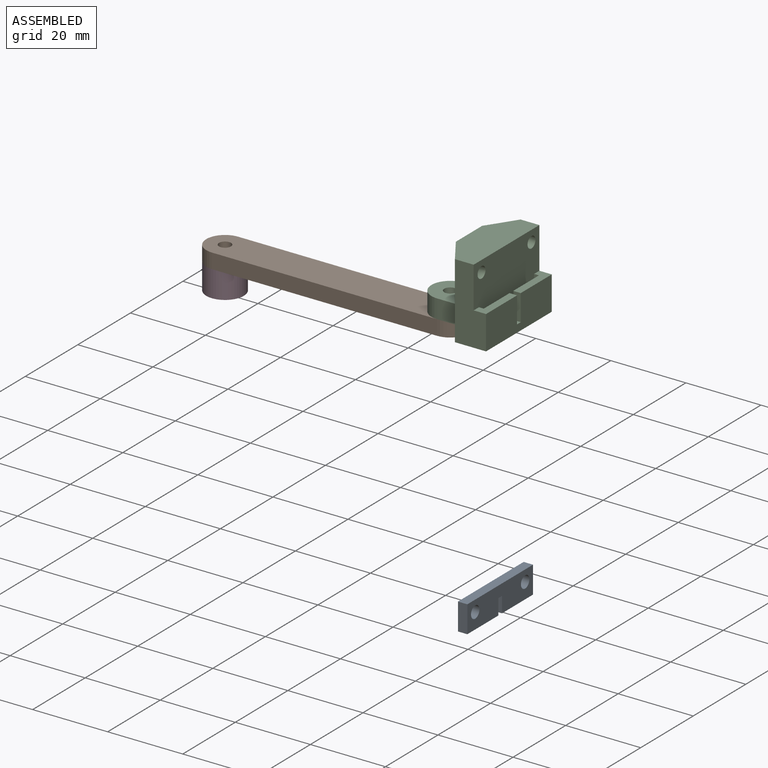
[diagram: assembled view]
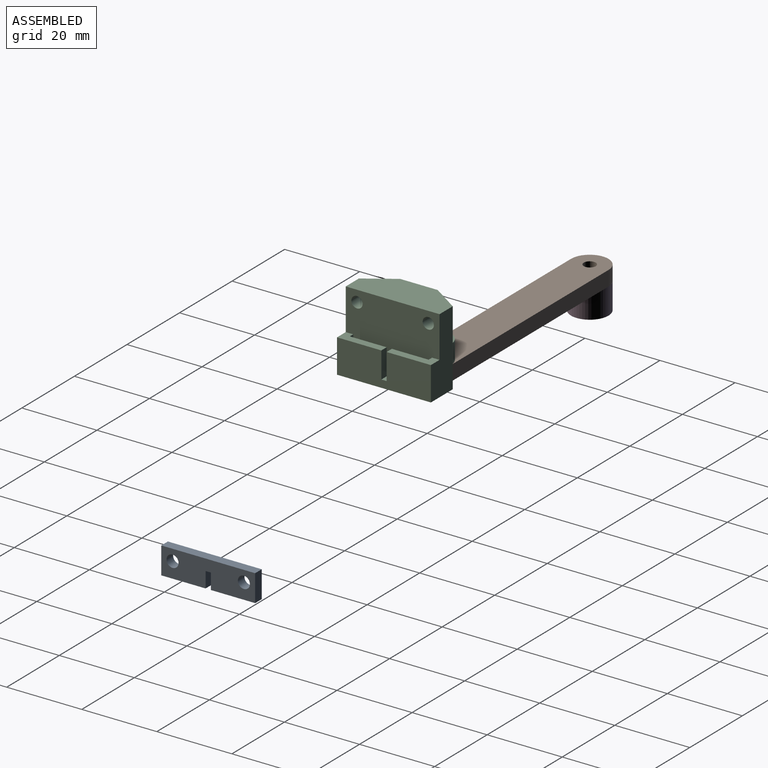
[diagram: assembled view, second angle]
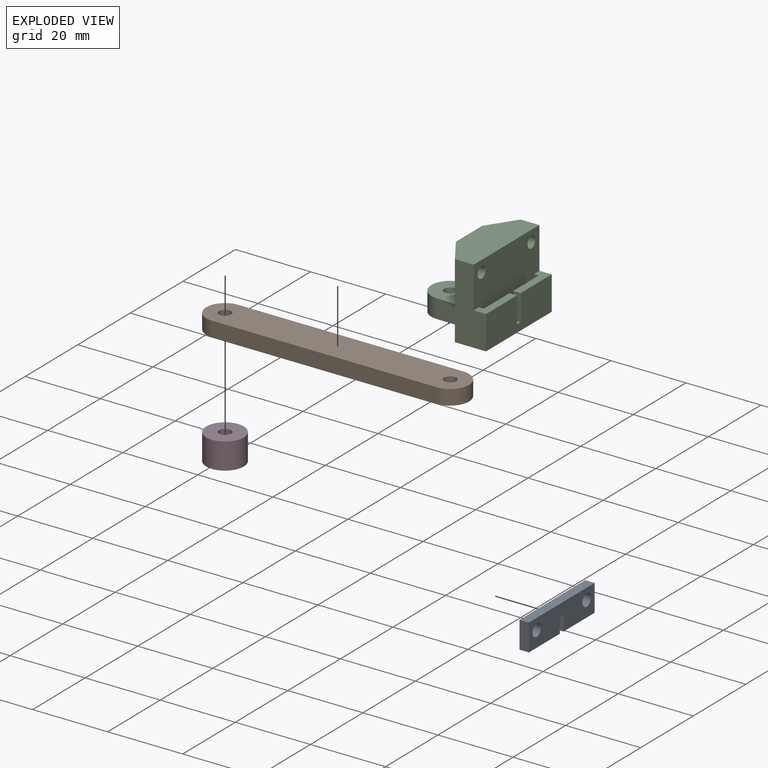
[diagram: exploded view]
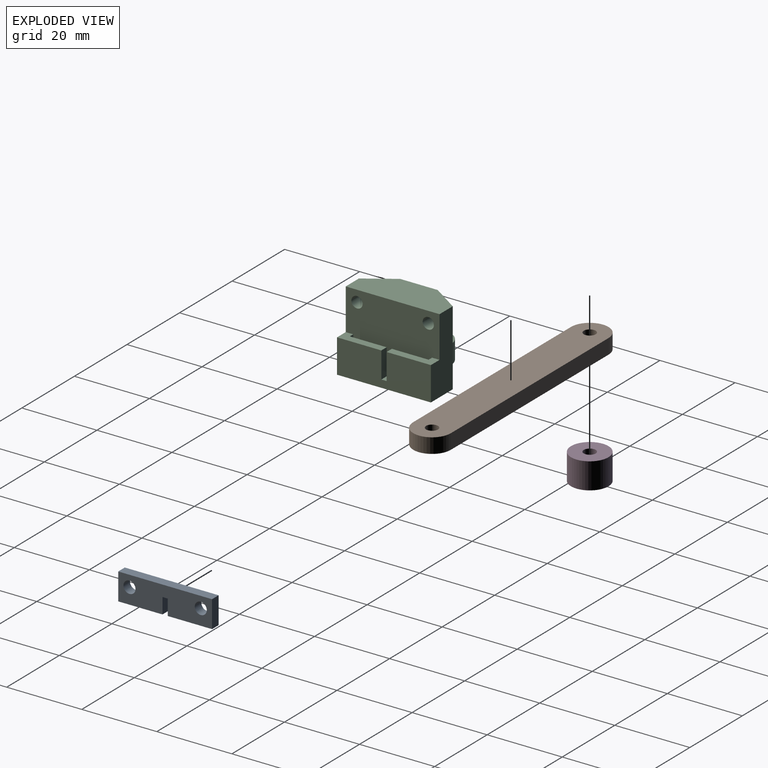
[diagram: exploded view, second angle]
ASSEMBLY  parts=4 mates=2
PART A: 12 faces, bbox 2.5x25x7.2 mm
  f0: plane 11.8x2.5mm, normal (0,0,-1), area 29.5mm2, adj f1,f9,f10,f11
  f1: plane 7.2x2.5mm, normal (0,1,0), area 18mm2, adj f0,f2,f10,f11
  f2: plane 25x2.5mm, normal (0,0,1), area 62.5mm2, adj f1,f3,f10,f11
  f3: plane 7.2x2.5mm, normal (0,-1,0), area 18mm2, adj f2,f4,f10,f11
  f4: plane 11.8x2.5mm, normal (0,0,-1), area 29.5mm2, adj f3,f5,f10,f11
  f5: plane 4.2x2.5mm, normal (0,1,0), area 10.5mm2, adj f4,f6,f10,f11
  f6: plane 2.5x1.4mm, normal (0,0,-1), area 3.5mm2, adj f5,f9,f10,f11
  f7: cylinder r=1.6mm len=3.2mm, axis (-1,0,0), area 25.1mm2, adj f10,f11
  f8: cylinder r=1.6mm len=3.2mm, axis (-1,0,0), area 25.1mm2, adj f10,f11
  f9: plane 4.2x2.5mm, normal (0,-1,0), area 10.5mm2, adj f0,f6,f10,f11
  f10: plane 25x7.2mm, normal (1,0,0), area 158mm2, adj f0,f1,f2,f3,f4,f5,f6,f7
  f11: plane 25x7.2mm, normal (-1,0,0), area 158mm2, adj f0,f1,f2,f3,f4,f5,f6,f7
PART B: 8 faces, bbox 70x10x4 mm
  f0: plane 60x4mm, normal (0,-1,0), area 240mm2, adj f4,f5,f6,f7
  f1: cylinder r=1.6mm len=4mm, axis (0,0,-1), area 40.2mm2, adj f4,f5
  f2: cylinder r=1.6mm len=4mm, axis (0,0,-1), area 40.2mm2, adj f4,f5
  f3: plane 60x4mm, normal (0,1,0), area 240mm2, adj f4,f5,f6,f7
  f4: plane 70x10mm, normal (0,0,1), area 662.5mm2, adj f0,f1,f2,f3,f6,f7
  f5: plane 70x10mm, normal (0,0,-1), area 662.5mm2, adj f0,f1,f2,f3,f6,f7
  f6: cylinder r=5mm len=10mm, axis (0,0,1), area 62.8mm2, adj f0,f3,f4,f5
  f7: cylinder r=5mm len=10mm, axis (0,0,-1), area 62.8mm2, adj f0,f3,f4,f5
PART C: 25 faces, bbox 23.7x25.4x20.4 mm
  f0: plane 25x18mm, normal (1,0,0), area 407.9mm2, adj f4,f5,f6,f13,f14,f15,f16,f17
  f1: plane 20.42x7.92mm, normal (-0.83,0.55,0), area 171.8mm2, adj f2,f5,f6,f7,f8,f24
  f2: plane 15x10mm, normal (-1,0,0), area 150mm2, adj f1,f3,f6,f10
  f3: plane 20.42x7.92mm, normal (-0.83,-0.55,0), area 171.8mm2, adj f2,f4,f6,f7,f9,f23
  f4: plane 20x8.3mm, normal (0,-1,0), area 129.7mm2, adj f0,f3,f6,f7,f17,f21
  f5: plane 20x8.3mm, normal (0,1,0), area 129.7mm2, adj f0,f1,f6,f7,f13,f21
  f6: plane 25x10mm, normal (0,0,1), area 212.5mm2, adj f0,f1,f2,f3,f4,f5
  f7: plane 25x23.3mm, normal (0,0,-1), area 376.2mm2, adj f1,f3,f4,f5,f8,f9,f11,f12
  f8: plane 5x5mm, normal (0,1,0), area 25mm2, adj f1,f7,f10,f12
  f9: plane 5x5mm, normal (0,-1,0), area 25mm2, adj f3,f7,f10,f12
  f10: plane 10x10mm, normal (0,0,1), area 81.2mm2, adj f2,f8,f9,f11,f12
  f11: cylinder r=1.6mm len=5mm, axis (0,0,1), area 50.3mm2, adj f7,f10
  f12: cylinder r=5mm len=10mm, axis (0,0,-1), area 78.5mm2, adj f7,f8,f9,f10
  f13: plane 11.8x3.3mm, normal (0,0,1), area 26.2mm2, adj f0,f5,f14,f18,f19,f21
  f14: plane 7x1.3mm, normal (0,-1,0), area 9.1mm2, adj f0,f13,f15,f18
  f15: plane 21x3.3mm, normal (0,0,1), area 30.1mm2, adj f0,f14,f16,f18,f19,f20,f21,f22
  f16: plane 7x1.3mm, normal (0,1,0), area 9.1mm2, adj f0,f15,f17,f22
  f17: plane 11.8x3.3mm, normal (0,0,1), area 26.2mm2, adj f0,f4,f16,f20,f21,f22
  f18: plane 9.8x7mm, normal (-1,0,0), area 68.6mm2, adj f13,f14,f15,f19
  f19: plane 7x2mm, normal (0,-1,0), area 14mm2, adj f13,f15,f18,f21
  f20: plane 7x2mm, normal (0,1,0), area 14mm2, adj f15,f17,f21,f22
  f21: plane 25x9mm, normal (1,0,0), area 215.2mm2, adj f4,f5,f7,f13,f15,f17,f19,f20
  f22: plane 9.8x7mm, normal (-1,0,0), area 68.6mm2, adj f15,f16,f17,f20
  f23: cylinder r=1.5mm len=8.01mm, axis (1,0,0), area 66.3mm2, adj f0,f3
  f24: cylinder r=1.5mm len=8.01mm, axis (1,0,0), area 66.3mm2, adj f0,f1
PART D: 4 faces, bbox 10x10x7 mm
  f0: cylinder r=1.6mm len=7mm, axis (0,0,-1), area 70.4mm2, adj f2,f3
  f1: cylinder r=5mm len=10mm, axis (0,0,-1), area 219.9mm2, adj f2,f3
  f2: plane 10x10mm, normal (0,0,1), area 70.5mm2, adj f0,f1
  f3: plane 10x10mm, normal (0,0,-1), area 70.5mm2, adj f0,f1
PLACE A t=(-2.24,-3.72,2.76)mm
PLACE B t=(-83.87,-12.18,31.65)mm
PLACE C rot(axis=(0,0,-1),0deg) t=(48.25,18.31,35.65)mm
PLACE D t=(-44.59,-43.08,24.65)mm
MATE revolute D.f0 <-> B.f1  axis (0,0,1) through (-96.7,-14.36,31.65)mm
MATE revolute B.f2 <-> C.f11  axis (0,0,1) through (-36.7,-14.36,35.65)mm
